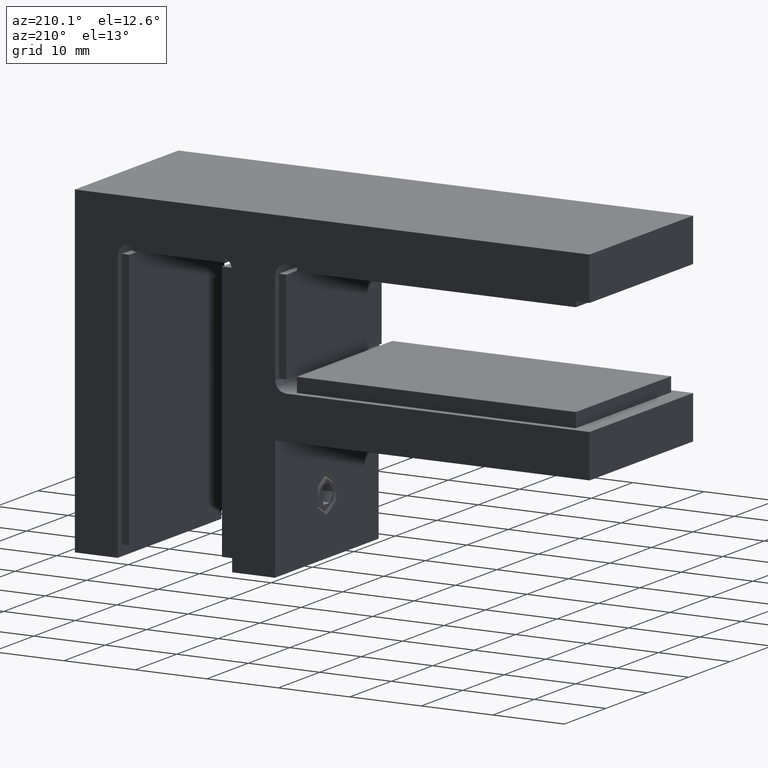
[diagram: clean part render]
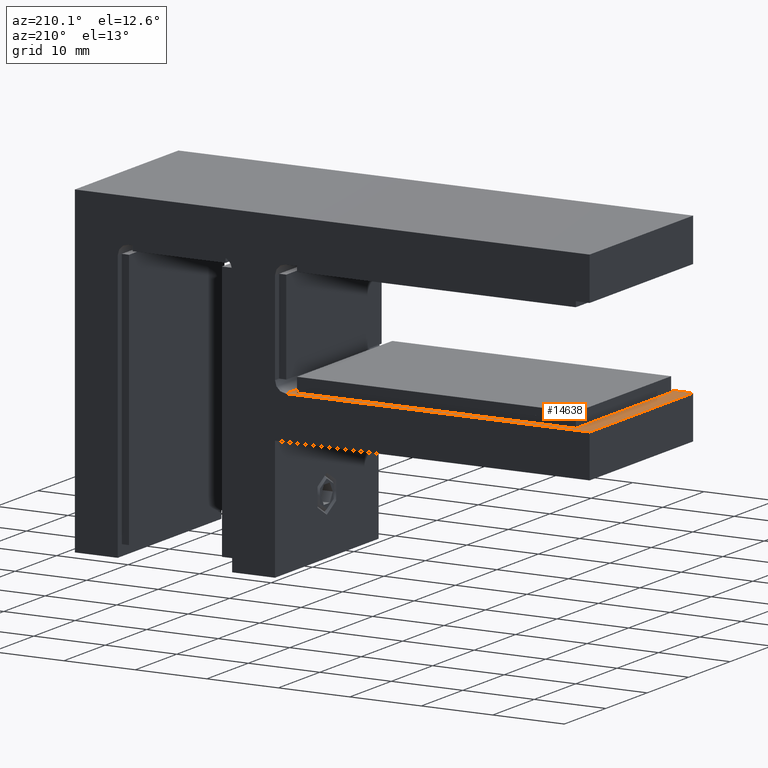
[diagram: same view with one face highlighted and labeled with its STEP entity id]
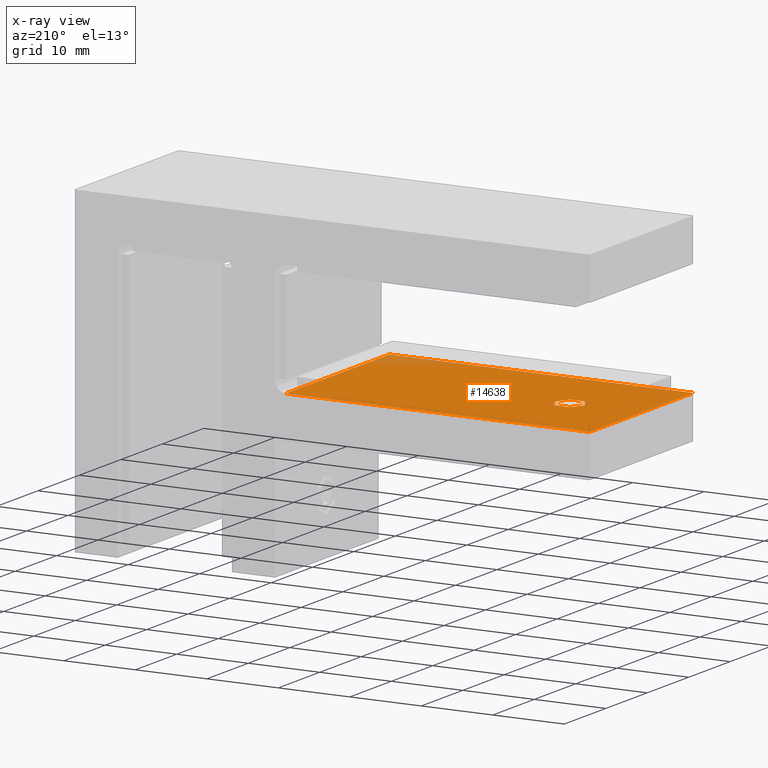
[diagram: x-ray of the same camera — body ghosted, the highlighted face saturated]
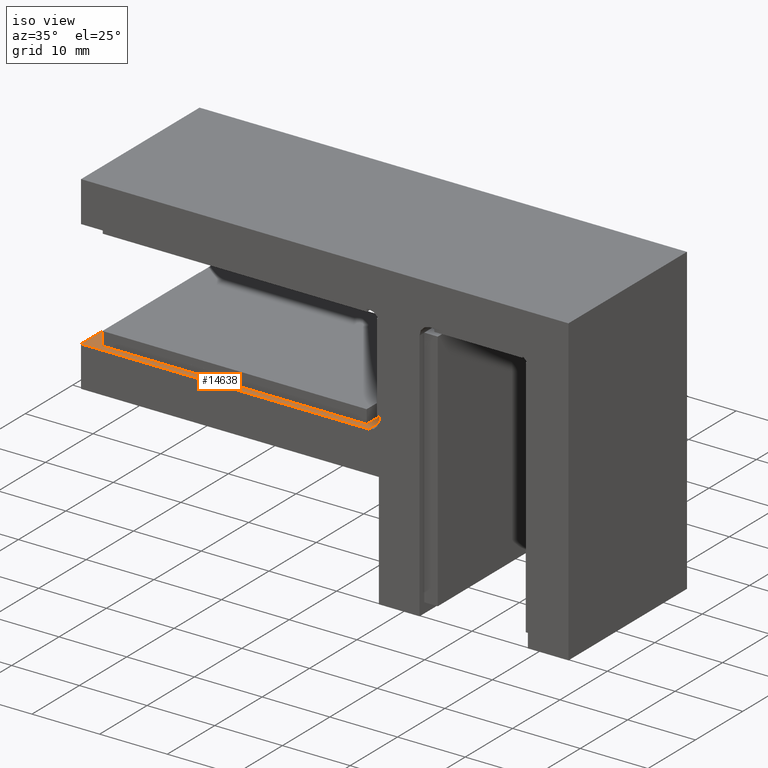
[diagram: same view with one face highlighted and labeled with its STEP entity id]
A machine part, auxiliary view. The second image highlights one B-rep face of the part: STEP entity #14638.
The next image is the same camera in x-ray: the body ghosted, the highlighted face saturated — about 3% of this face is hidden behind the body in this view.
A second angle (iso view) of the same face is appended — the face is thin or edge-on in the first view.
In plain terms, the highlighted planar face has unit normal (0, 0, -1).
Its self-contained STEP definition (entity closure, byte-faithful):
#190 = VERTEX_POINT ( 'NONE', #19468 ) ;
#279 = CARTESIAN_POINT ( 'NONE',  ( -25.99999999999999645, -3.538031723716965276E-16, 0.4999999999999935052 ) ) ;
#586 = EDGE_CURVE ( 'NONE', #3004, #16472, #12817, .T. ) ;
#1062 = CARTESIAN_POINT ( 'NONE',  ( -36.00000000000000000, 12.50000000000000000, 0.4999999999999935052 ) ) ;
#1195 = CARTESIAN_POINT ( 'NONE',  ( 6.500000000000005329, -12.50000000000000000, 0.4999999999999935052 ) ) ;
#1260 = CARTESIAN_POINT ( 'NONE',  ( -36.00000000000000000, 12.50000000000000000, 0.4999999999999935052 ) ) ;
#1867 = CIRCLE ( 'NONE', #3357, 2.099999999999990763 ) ;
#2008 = EDGE_CURVE ( 'NONE', #7013, #190, #15678, .T. ) ;
#2465 = EDGE_CURVE ( 'NONE', #16472, #14660, #10708, .T. ) ;
#2728 = LINE ( 'NONE', #7326, #14191 ) ;
#3004 = VERTEX_POINT ( 'NONE', #7640 ) ;
#3357 = AXIS2_PLACEMENT_3D ( 'NONE', #279, #20272, #5110 ) ;
#3463 = DIRECTION ( 'NONE',  ( 0.000000000000000000, 0.000000000000000000, -1.000000000000000000 ) ) ;
#4138 = ORIENTED_EDGE ( 'NONE', *, *, #20914, .T. ) ;
#5018 = ORIENTED_EDGE ( 'NONE', *, *, #2465, .T. ) ;
#5110 = DIRECTION ( 'NONE',  ( -1.000000000000000000, 0.000000000000000000, 0.000000000000000000 ) ) ;
#5848 = EDGE_LOOP ( 'NONE', ( #15302, #4138 ) ) ;
#6569 = VECTOR ( 'NONE', #20869, 1000.000000000000000 ) ;
#6756 = ORIENTED_EDGE ( 'NONE', *, *, #17449, .F. ) ;
#7013 = VERTEX_POINT ( 'NONE', #21070 ) ;
#7326 = CARTESIAN_POINT ( 'NONE',  ( -36.00000000000000000, 12.50000000000000000, 0.4999999999999935052 ) ) ;
#7575 = CARTESIAN_POINT ( 'NONE',  ( -36.00000000000000000, -12.50000000000000000, 0.4999999999999935052 ) ) ;
#7640 = CARTESIAN_POINT ( 'NONE',  ( -36.00000000000000000, 12.50000000000000000, 0.4999999999999935052 ) ) ;
#8839 = FACE_OUTER_BOUND ( 'NONE', #11824, .T. ) ;
#9258 = DIRECTION ( 'NONE',  ( -0.000000000000000000, 1.000000000000000000, -0.000000000000000000 ) ) ;
#9822 = VERTEX_POINT ( 'NONE', #12346 ) ;
#9907 = FACE_BOUND ( 'NONE', #5848, .T. ) ;
#10370 = DIRECTION ( 'NONE',  ( -1.000000000000000000, 0.000000000000000000, 0.000000000000000000 ) ) ;
#10560 = ORIENTED_EDGE ( 'NONE', *, *, #15015, .T. ) ;
#10708 = LINE ( 'NONE', #19202, #6569 ) ;
#11694 = VECTOR ( 'NONE', #9258, 1000.000000000000000 ) ;
#11824 = EDGE_LOOP ( 'NONE', ( #5018, #10560, #6756, #19085 ) ) ;
#12346 = CARTESIAN_POINT ( 'NONE',  ( 6.500000000000005329, 12.50000000000000000, 0.4999999999999935052 ) ) ;
#12817 = LINE ( 'NONE', #1062, #19076 ) ;
#12860 = PLANE ( 'NONE',  #19566 ) ;
#12928 = DIRECTION ( 'NONE',  ( 0.000000000000000000, 0.000000000000000000, -1.000000000000000000 ) ) ;
#14191 = VECTOR ( 'NONE', #15946, 1000.000000000000000 ) ;
#14533 = DIRECTION ( 'NONE',  ( -1.000000000000000000, 0.000000000000000000, -0.000000000000000000 ) ) ;
#14638 = ADVANCED_FACE ( 'NONE', ( #9907, #8839 ), #12860, .F. ) ;
#14660 = VERTEX_POINT ( 'NONE', #1195 ) ;
#15015 = EDGE_CURVE ( 'NONE', #14660, #9822, #21329, .T. ) ;
#15302 = ORIENTED_EDGE ( 'NONE', *, *, #2008, .T. ) ;
#15678 = CIRCLE ( 'NONE', #20793, 2.099999999999990763 ) ;
#15946 = DIRECTION ( 'NONE',  ( 1.000000000000000000, 0.000000000000000000, 0.000000000000000000 ) ) ;
#16472 = VERTEX_POINT ( 'NONE', #7575 ) ;
#16806 = CARTESIAN_POINT ( 'NONE',  ( -25.99999999999999645, -3.538031723716965276E-16, 0.4999999999999935052 ) ) ;
#17449 = EDGE_CURVE ( 'NONE', #3004, #9822, #2728, .T. ) ;
#19076 = VECTOR ( 'NONE', #19302, 1000.000000000000000 ) ;
#19085 = ORIENTED_EDGE ( 'NONE', *, *, #586, .T. ) ;
#19202 = CARTESIAN_POINT ( 'NONE',  ( -36.00000000000000000, -12.50000000000000000, 0.4999999999999935052 ) ) ;
#19257 = CARTESIAN_POINT ( 'NONE',  ( 6.500000000000004441, 12.50000000000000000, 0.4999999999999935052 ) ) ;
#19302 = DIRECTION ( 'NONE',  ( -0.000000000000000000, -1.000000000000000000, -0.000000000000000000 ) ) ;
#19468 = CARTESIAN_POINT ( 'NONE',  ( -23.90000000000000568, -9.662734455075387264E-17, 0.4999999999999935052 ) ) ;
#19566 = AXIS2_PLACEMENT_3D ( 'NONE', #1260, #12928, #14533 ) ;
#20272 = DIRECTION ( 'NONE',  ( 0.000000000000000000, 0.000000000000000000, -1.000000000000000000 ) ) ;
#20793 = AXIS2_PLACEMENT_3D ( 'NONE', #16806, #3463, #10370 ) ;
#20869 = DIRECTION ( 'NONE',  ( 1.000000000000000000, 0.000000000000000000, 0.000000000000000000 ) ) ;
#20914 = EDGE_CURVE ( 'NONE', #190, #7013, #1867, .T. ) ;
#21070 = CARTESIAN_POINT ( 'NONE',  ( -28.09999999999998721, -3.538031723716965276E-16, 0.4999999999999935052 ) ) ;
#21329 = LINE ( 'NONE', #19257, #11694 ) ;